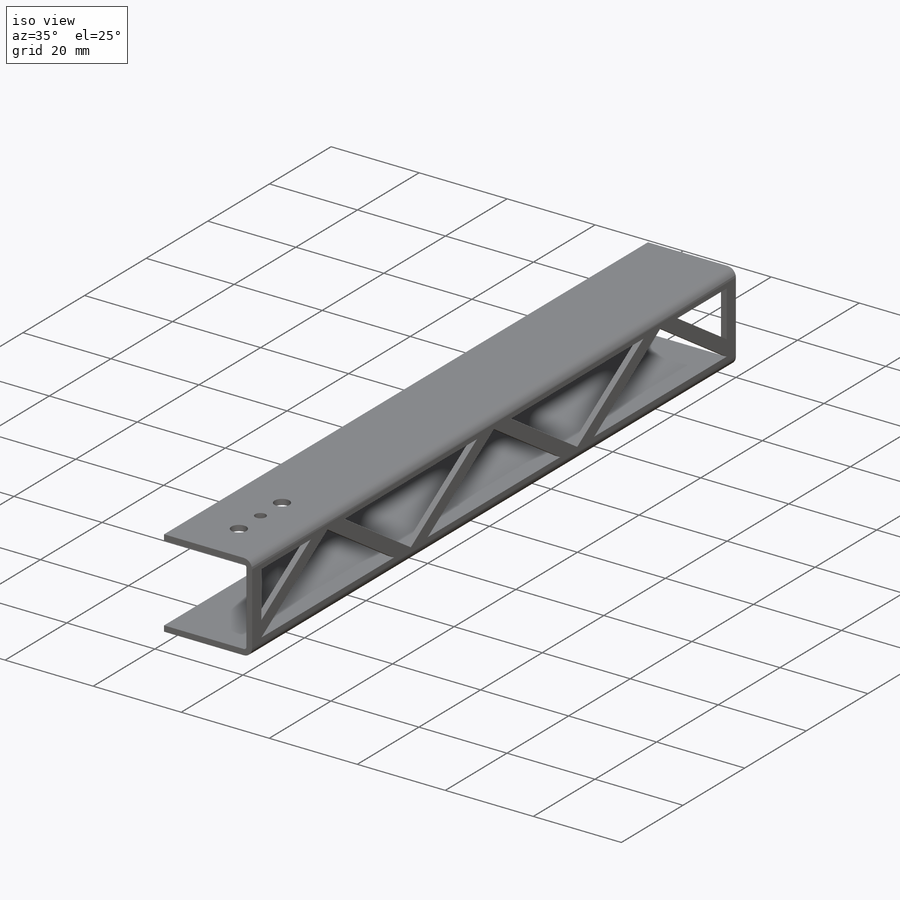
[diagram: iso view]
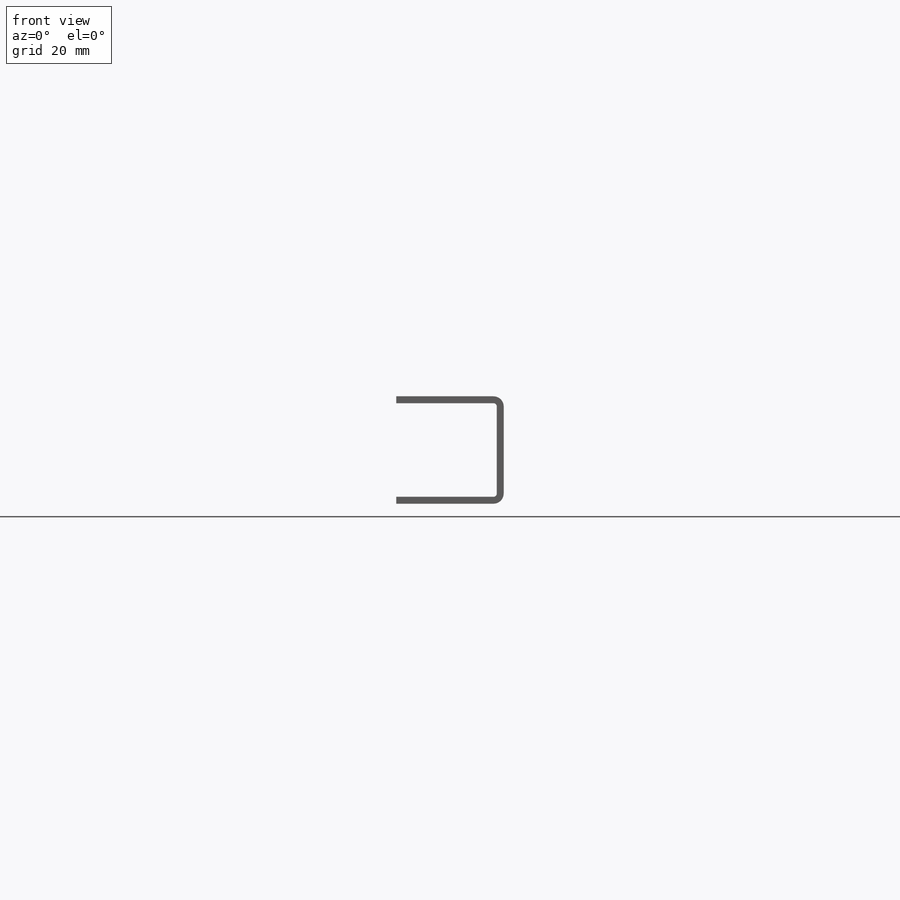
[diagram: front view]
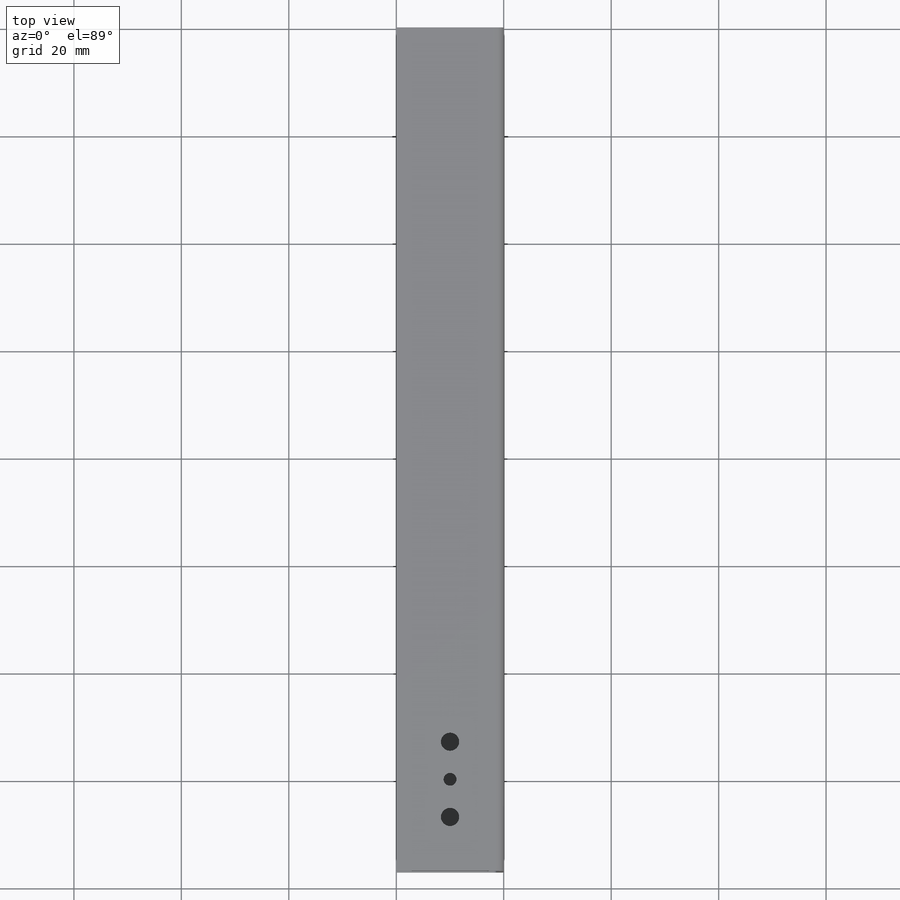
[diagram: top view]
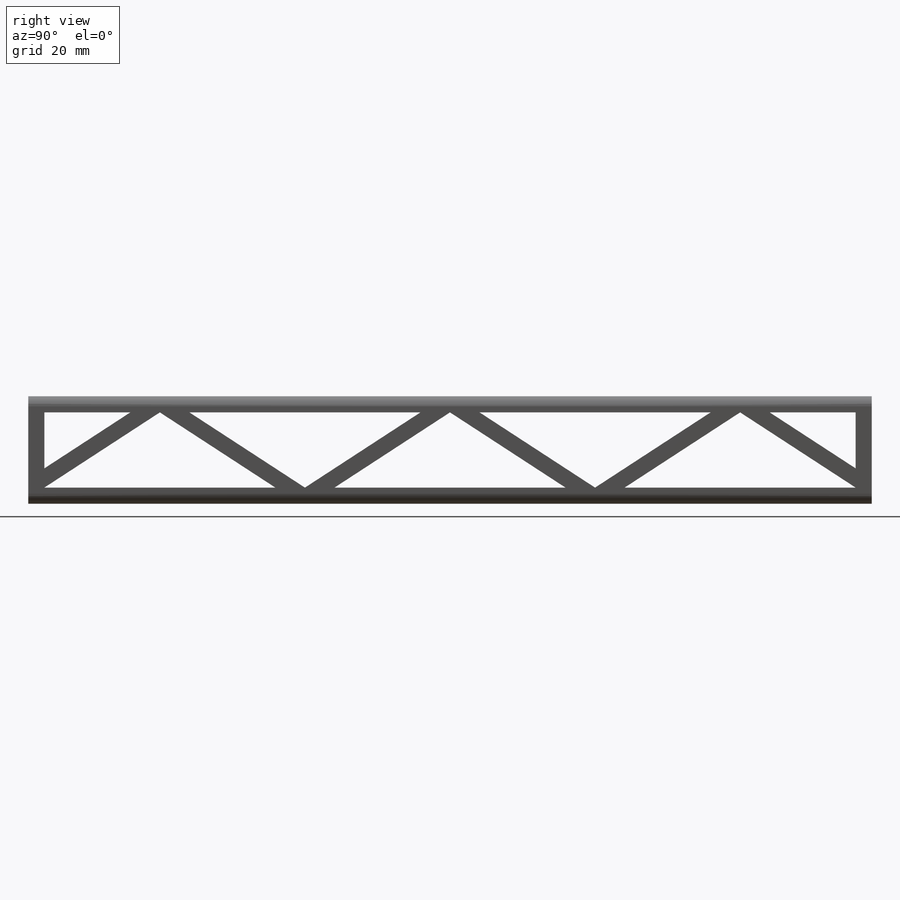
[diagram: right view]
SOLIDWORKS PART (.sldprt)
format: sldprt  version: not decoded by parser v0  size: 493,056 bytes
history: native  units: mm
features: sketch x29, cut_extrude x8, sheet_metal_op x7, extrude x3, plane x2, hole x2, material x1 + 14 further entries (+12 scaffold rows collapsed; 7 parser-record rows omitted)
feature tree (85):
  scaffold x12  (default folders/planes/origin — collapsed)
  material  "Material <not specified>"
  sketch  "Sketch1"  dims[c1.D1=~16.910725mm c1.D2=~21.561175mm c2.D1=20.0mm c2.D2=20.0mm]
  extrude  "Boss-Extrude1"  Depth=173.5mm
  sketch  "Sketch3"  dims[c1.D2=18.0mm c1.D3=36.0mm c1.D4=3.0mm c1.D5=40.0mm c2.D3=3.0mm c2.D5=~38.749744mm c2.D2=~23.573262mm c3.D2=~0.498165deg c4.D2=3.0mm c4.D1=3.0mm]
  plane  "Plane1"
  plane  "Plane2"  Offset=0.6mm SharpBend2=0
  cut_extrude  "Cut-Extrude2"  Depth=10mm
  sketch  "Sketch8"  dims[D1=9.055mm]
  sketch  "Sketch15"  dims[D1=0.0mm D2=0.0mm]
  extrude  "Boss-Extrude2"  [1 undecoded]
  sketch  "Sketch17"
  hole  "M3 Clearance Hole1"  Diameter=3.4mm Depth=3.34mm
  sketch  "Sketch19"
  sketch  "Sketch18"  dims[hole-wizard template sketch: 34 standard entries collapsed; hole parameters kept: c5.Hole Dia.=3.4mm c5.Hole Depth=3.34mm c5.Drill Angle=~2059.488517mm]  [1 undecoded]
  sketch  "Sketch20"  dims[D1=~2.044439mm]
  cut_extrude  "Cut-Extrude5"  Depth=5mm
  sketch  "Sketch29"
  hole  "M3 Clearance Hole2"  Diameter=3.4mm Depth=20mm
  sketch  "Sketch30"
  sketch  "Sketch31"  dims[hole-wizard template sketch: 44 standard entries collapsed; hole parameters kept: c7.Thru Hole Dia.=3.4mm c7.Thru Hole Depth=20.0mm]
  sketch  "Sketch32"  dims[D1=38.5mm D2=19.25mm D3=33.0mm D4=0.0mm]
  sketch  "Sketch35"
  extrude  "Boss-Extrude3"  [1 undecoded]
  sketch  "Bend-Lines1"
  sketch  "Bounding-Box1"
  sheet_metal_op  "Sheet-Metal(3)"
  "Flat-Pattern(3)"
  sketch  "Bend-Lines2"
  sketch  "Bounding-Box2"
  parser-record x7  (decoder bookkeeping rows leaked as tree rows — omitted from the tree; the rows remain in map.json)
  "Flatten-<SharpBend2>1"
  cut_extrude  "Sheet-Metal(4)"  Depth=0.6mm
  sheet_metal_op  "Flat-Pattern(3)"
  sketch  "Bend-Lines2"
  sketch  "Bounding-Box2"
  "Flatten-<SharpBend1>1"
  "Flatten-<SharpBend2>1"
  cut_extrude  "Sheet-Metal(15)"  Depth=0.6mm
  sheet_metal_op  "Flat-Pattern(3)"
  sketch  "Bend-Lines2"
  sketch  "Bounding-Box2"
  "Flatten-<SharpBend1>1"
  "Flatten-<SharpBend2>1"
  cut_extrude  "Sheet-Metal(16)"  Depth=0.6mm
  sheet_metal_op  "Flat-Pattern(3)"
  sketch  "Bend-Lines2"
  sketch  "Bounding-Box2"
  "Flatten-<SharpBend1>1"
  "Flatten-<SharpBend2>1"
  cut_extrude  "Sheet-Metal(17)"  Depth=0.6mm
  sheet_metal_op  "Flat-Pattern(3)"
  sketch  "Bend-Lines2"
  sketch  "Bounding-Box2"
  "Flatten-<SharpBend1>1"
  "Flatten-<SharpBend2>1"
  cut_extrude  "Sheet-Metal(21)"  Depth=0.6mm
  sheet_metal_op  "Flat-Pattern(3)"
  sketch  "Bend-Lines2"
  sketch  "Bounding-Box2"
  "Flatten-<SharpBend1>1"
  "Flatten-<SharpBend2>1"
  cut_extrude  "Sheet-Metal(24)"  Depth=0.6mm
  sheet_metal_op  "Flat-Pattern(3)"
  sketch  "Bend-Lines2"
  sketch  "Bounding-Box2"
  "Flatten-<SharpBend1>1"
  "Flatten-<SharpBend2>1"
decode coverage: 19 of 49 modeling features carry decoded parameters; 14 rows unclassified (native names shown)
note: ~ marks probable driven/reference dimensions
note: 2 parameter values undecoded
note: suppression state not decoded; provenance and decode notes live in map.json
note: 1 required parameter value undecoded (feature->parameter linkage not recoverable at this tier; creation-order binding heuristic only, values carry confidence <= 0.55)
